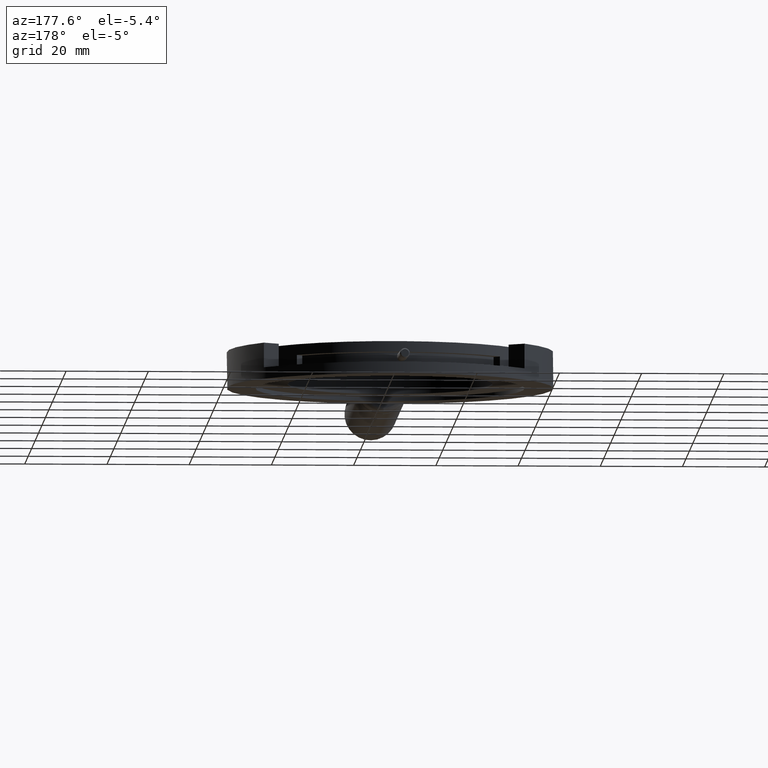
[diagram: clean part render]
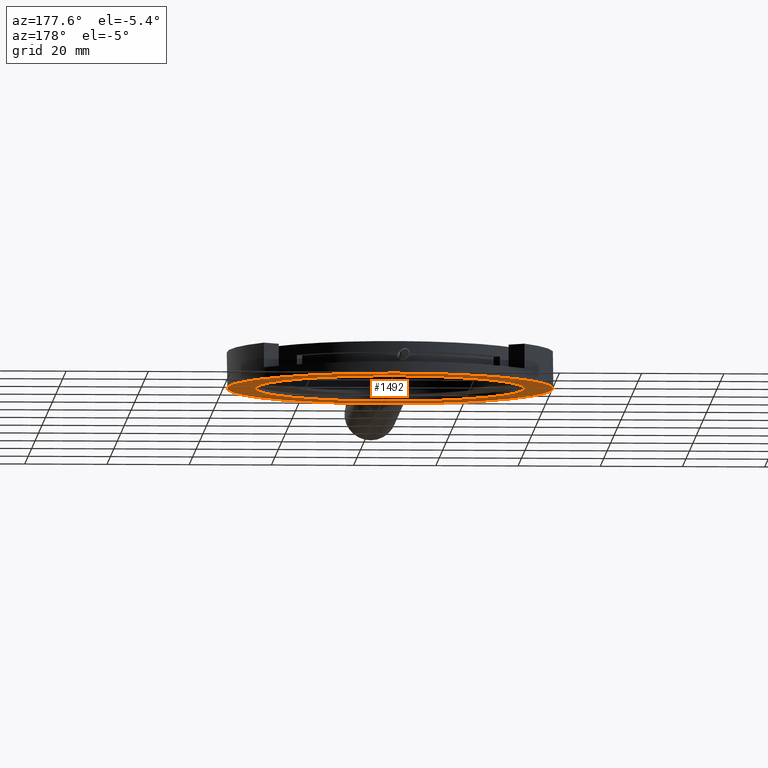
[diagram: same view with one face highlighted and labeled with its STEP entity id]
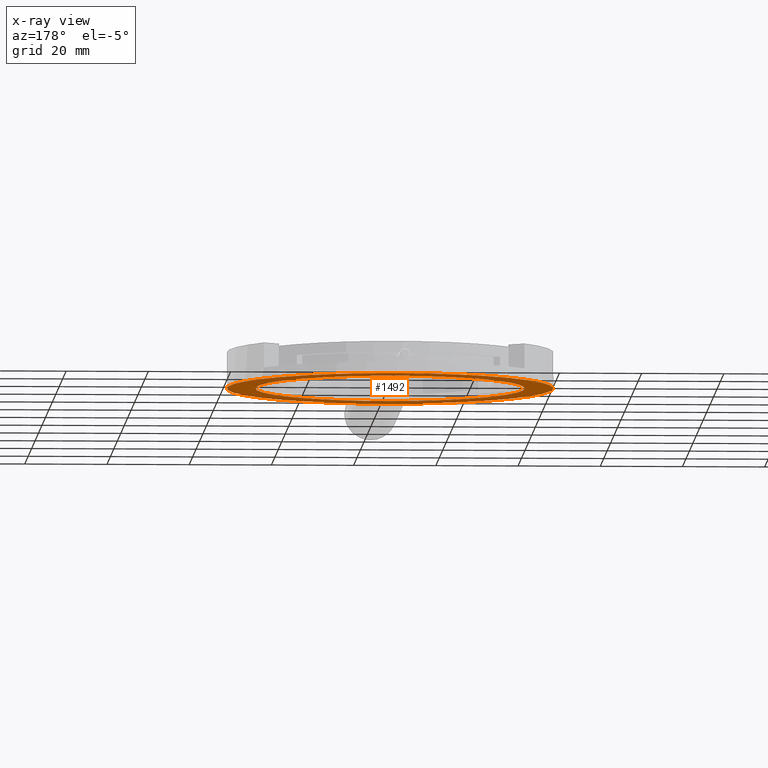
[diagram: x-ray of the same camera — body ghosted, the highlighted face saturated]
A machine part, auxiliary view. The second image highlights one B-rep face of the part: STEP entity #1492.
The next image is the same camera in x-ray: the body ghosted, the highlighted face saturated — about 0% of this face is hidden behind the body in this view.
In plain terms, the highlighted planar face has unit normal (0, 0, 1).
Its self-contained STEP definition (entity closure, byte-faithful):
#117 = VERTEX_POINT ( 'NONE', #1326 ) ;
#129 = DIRECTION ( 'NONE',  ( 1.000000000000000000, 0.000000000000000000, -0.000000000000000000 ) ) ;
#149 = DIRECTION ( 'NONE',  ( 1.000000000000000000, 0.000000000000000000, -0.000000000000000000 ) ) ;
#307 = DIRECTION ( 'NONE',  ( 0.000000000000000000, 0.000000000000000000, -1.000000000000000000 ) ) ;
#355 = CARTESIAN_POINT ( 'NONE',  ( 30.16702126333060363, -10.11512512715285972, 74.99399999999999977 ) ) ;
#417 = LINE ( 'NONE', #1443, #1105 ) ;
#516 = ORIENTED_EDGE ( 'NONE', *, *, #1445, .F. ) ;
#553 = CARTESIAN_POINT ( 'NONE',  ( -2.583978736669392706, -10.11512512715285972, 74.99399999999999977 ) ) ;
#646 = AXIS2_PLACEMENT_3D ( 'NONE', #1477, #307, #890 ) ;
#747 = EDGE_CURVE ( 'NONE', #1049, #1049, #1068, .T. ) ;
#802 = AXIS2_PLACEMENT_3D ( 'NONE', #976, #1297, #149 ) ;
#866 = FACE_OUTER_BOUND ( 'NONE', #972, .T. ) ;
#890 = DIRECTION ( 'NONE',  ( 1.000000000000000000, 0.000000000000000000, 0.000000000000000000 ) ) ;
#972 = EDGE_LOOP ( 'NONE', ( #1847, #516 ) ) ;
#976 = CARTESIAN_POINT ( 'NONE',  ( -2.583978736669392706, -10.11512512715285972, 74.99399999999999977 ) ) ;
#1049 = VERTEX_POINT ( 'NONE', #355 ) ;
#1068 = CIRCLE ( 'NONE', #646, 32.75099999999999767 ) ;
#1105 = VECTOR ( 'NONE', #129, 1000.000000000000000 ) ;
#1134 = CIRCLE ( 'NONE', #1496, 39.69750000000000512 ) ;
#1163 = VERTEX_POINT ( 'NONE', #1371 ) ;
#1297 = DIRECTION ( 'NONE',  ( 0.000000000000000000, 0.000000000000000000, 1.000000000000000000 ) ) ;
#1298 = EDGE_LOOP ( 'NONE', ( #1473 ) ) ;
#1326 = CARTESIAN_POINT ( 'NONE',  ( 2.260447504899412596, -49.51592512715286176, 74.99399999999999977 ) ) ;
#1371 = CARTESIAN_POINT ( 'NONE',  ( -7.428404978238196676, -49.51592512715286176, 74.99399999999999977 ) ) ;
#1443 = CARTESIAN_POINT ( 'NONE',  ( -2.583978736669392706, -49.51592512715286176, 74.99399999999999977 ) ) ;
#1445 = EDGE_CURVE ( 'NONE', #117, #1163, #1134, .T. ) ;
#1458 = EDGE_CURVE ( 'NONE', #1163, #117, #417, .T. ) ;
#1473 = ORIENTED_EDGE ( 'NONE', *, *, #747, .F. ) ;
#1477 = CARTESIAN_POINT ( 'NONE',  ( -2.583978736669392706, -10.11512512715285972, 74.99399999999999977 ) ) ;
#1492 = ADVANCED_FACE ( 'NONE', ( #866, #1726 ), #1591, .F. ) ;
#1496 = AXIS2_PLACEMENT_3D ( 'NONE', #553, #1716, #1864 ) ;
#1591 = PLANE ( 'NONE',  #802 ) ;
#1716 = DIRECTION ( 'NONE',  ( 0.000000000000000000, 0.000000000000000000, 1.000000000000000000 ) ) ;
#1726 = FACE_BOUND ( 'NONE', #1298, .T. ) ;
#1847 = ORIENTED_EDGE ( 'NONE', *, *, #1458, .F. ) ;
#1864 = DIRECTION ( 'NONE',  ( -1.000000000000000000, 0.000000000000000000, 0.000000000000000000 ) ) ;